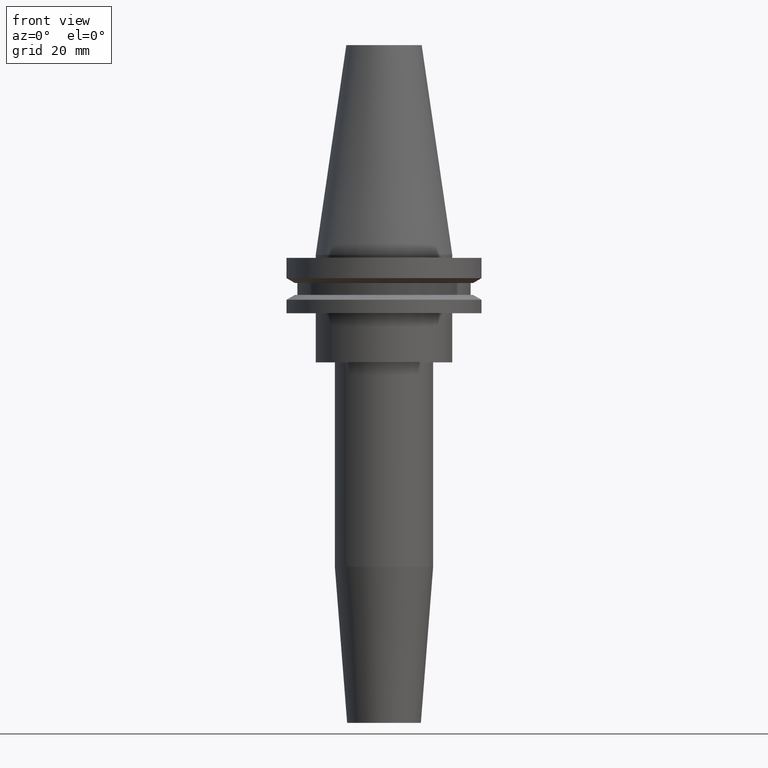
[diagram: clean part render]
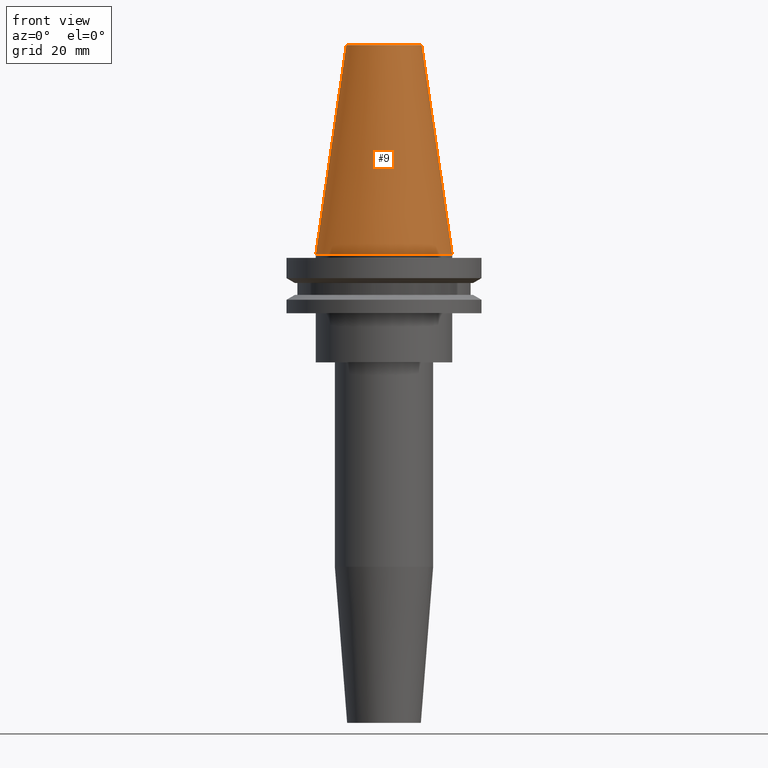
[diagram: same view with one face highlighted and labeled with its STEP entity id]
A machine part, front view. The second image highlights one B-rep face of the part: STEP entity #9.
In plain terms, the highlighted conical surface has half-angle 8.297 deg.
Its self-contained STEP definition (entity closure, byte-faithful):
#9 = ADVANCED_FACE ( 'NONE', ( #520 ), #375, .T. ) ;
#15 = CIRCLE ( 'NONE', #196, 22.22500000000000142 ) ;
#22 = VERTEX_POINT ( 'NONE', #103 ) ;
#61 = VECTOR ( 'NONE', #75, 999.9999999999998863 ) ;
#68 = CIRCLE ( 'NONE', #689, 12.27178102086201150 ) ;
#75 = DIRECTION ( 'NONE',  ( -0.1443082272672999711, 0.000000000000000000, -0.9895327864921755756 ) ) ;
#83 = LINE ( 'NONE', #811, #774 ) ;
#103 = CARTESIAN_POINT ( 'NONE',  ( -12.27178102086201150, 0.000000000000000000, 68.25000000000000000 ) ) ;
#104 = CARTESIAN_POINT ( 'NONE',  ( 22.22500000000000142, 2.721777511104992849E-15, 0.000000000000000000 ) ) ;
#113 = DIRECTION ( 'NONE',  ( 0.000000000000000000, 0.000000000000000000, -1.000000000000000000 ) ) ;
#134 = EDGE_CURVE ( 'NONE', #22, #396, #68, .T. ) ;
#138 = VERTEX_POINT ( 'NONE', #849 ) ;
#173 = ORIENTED_EDGE ( 'NONE', *, *, #134, .F. ) ;
#191 = AXIS2_PLACEMENT_3D ( 'NONE', #445, #113, #694 ) ;
#196 = AXIS2_PLACEMENT_3D ( 'NONE', #239, #569, #501 ) ;
#229 = EDGE_CURVE ( 'NONE', #22, #138, #679, .T. ) ;
#239 = CARTESIAN_POINT ( 'NONE',  ( 0.000000000000000000, 0.000000000000000000, 0.000000000000000000 ) ) ;
#263 = ORIENTED_EDGE ( 'NONE', *, *, #812, .T. ) ;
#375 = CONICAL_SURFACE ( 'NONE', #191, 22.22500000000000142, 0.1448138465474119174 ) ;
#385 = EDGE_LOOP ( 'NONE', ( #555, #173, #511, #263 ) ) ;
#396 = VERTEX_POINT ( 'NONE', #686 ) ;
#445 = CARTESIAN_POINT ( 'NONE',  ( 0.000000000000000000, 0.000000000000000000, 0.000000000000000000 ) ) ;
#501 = DIRECTION ( 'NONE',  ( 1.000000000000000000, 0.000000000000000000, 0.000000000000000000 ) ) ;
#511 = ORIENTED_EDGE ( 'NONE', *, *, #229, .T. ) ;
#520 = FACE_OUTER_BOUND ( 'NONE', #385, .T. ) ;
#525 = DIRECTION ( 'NONE',  ( -0.000000000000000000, -0.000000000000000000, 1.000000000000000000 ) ) ;
#555 = ORIENTED_EDGE ( 'NONE', *, *, #777, .F. ) ;
#569 = DIRECTION ( 'NONE',  ( -0.000000000000000000, -0.000000000000000000, 1.000000000000000000 ) ) ;
#659 = DIRECTION ( 'NONE',  ( 1.000000000000000000, 0.000000000000000000, 0.000000000000000000 ) ) ;
#679 = LINE ( 'NONE', #735, #61 ) ;
#686 = CARTESIAN_POINT ( 'NONE',  ( 12.27178102086201150, 2.112318622904291439E-15, 68.25000000000000000 ) ) ;
#689 = AXIS2_PLACEMENT_3D ( 'NONE', #775, #525, #659 ) ;
#694 = DIRECTION ( 'NONE',  ( -1.000000000000000000, 0.000000000000000000, 0.000000000000000000 ) ) ;
#727 = DIRECTION ( 'NONE',  ( 0.1443082272672999711, 1.767266086135276757E-17, -0.9895327864921755756 ) ) ;
#735 = CARTESIAN_POINT ( 'NONE',  ( -22.22500000000000142, 0.000000000000000000, 0.000000000000000000 ) ) ;
#774 = VECTOR ( 'NONE', #727, 999.9999999999998863 ) ;
#775 = CARTESIAN_POINT ( 'NONE',  ( 0.000000000000000000, 0.000000000000000000, 68.25000000000000000 ) ) ;
#777 = EDGE_CURVE ( 'NONE', #396, #841, #83, .T. ) ;
#811 = CARTESIAN_POINT ( 'NONE',  ( 22.22500000000000142, 2.721777511104992849E-15, 0.000000000000000000 ) ) ;
#812 = EDGE_CURVE ( 'NONE', #138, #841, #15, .T. ) ;
#841 = VERTEX_POINT ( 'NONE', #104 ) ;
#849 = CARTESIAN_POINT ( 'NONE',  ( -22.22500000000000142, 0.000000000000000000, 0.000000000000000000 ) ) ;